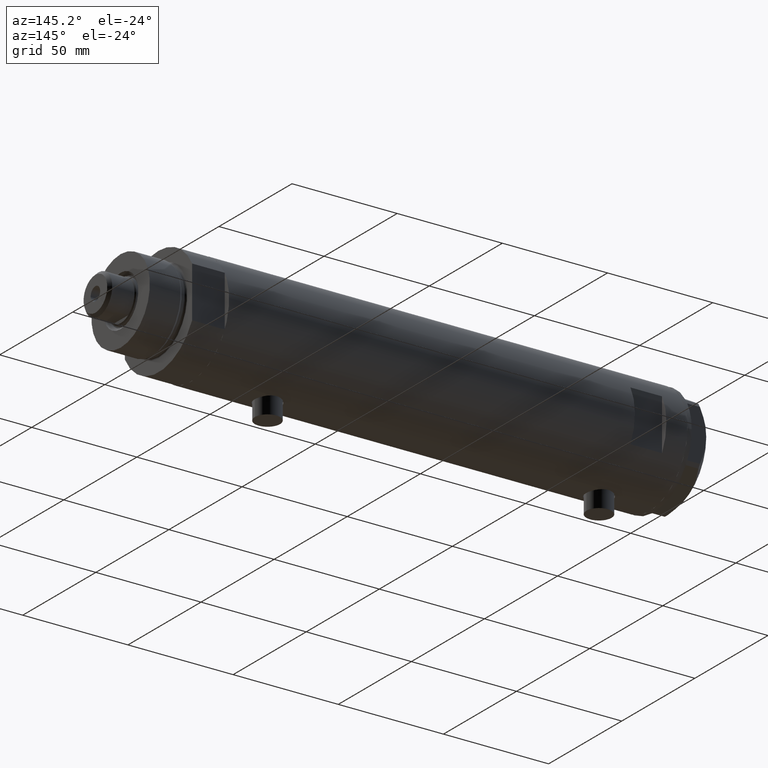
[diagram: clean part render]
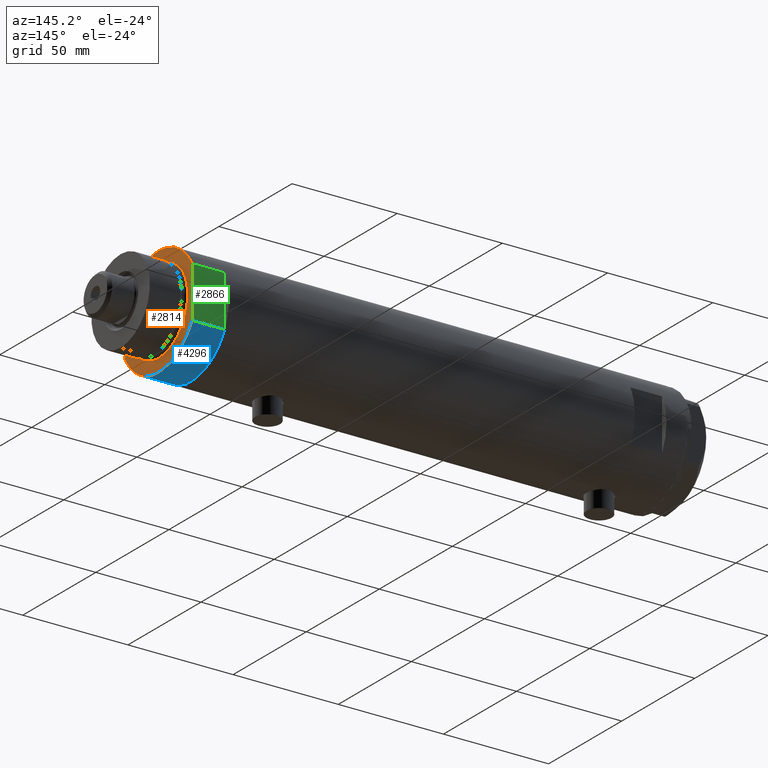
[diagram: same view with three faces highlighted in distinct colors, each labeled with its STEP entity id]
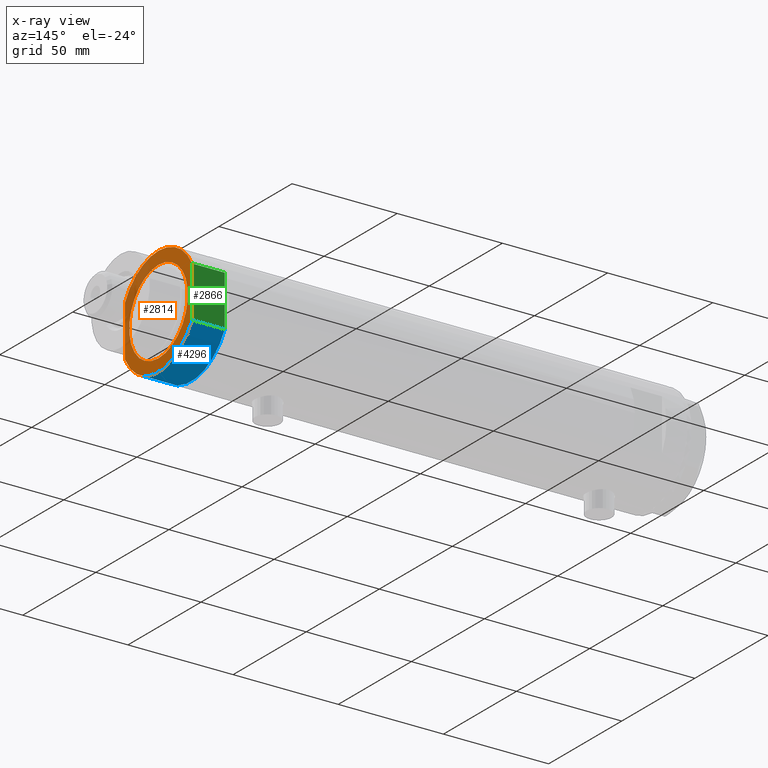
[diagram: x-ray of the same camera — body ghosted, the three highlighted faces saturated]
A machine part, auxiliary view with three faces highlighted in distinct colors.
The next image is the same camera in x-ray (body ghosted, the three faces saturated) — at least one of them is partly hidden behind the body in this view.
Their STEP definitions:

[orange] entity #2814 — the highlighted planar face has unit normal (1, 0, -0).
#115 = DIRECTION ( 'NONE',  ( -1.000000000000000000, -0.000000000000000000, -0.000000000000000000 ) ) ;
#209 = AXIS2_PLACEMENT_3D ( 'NONE', #3566, #2849, #2458 ) ;
#284 = ORIENTED_EDGE ( 'NONE', *, *, #3038, .T. ) ;
#348 = VERTEX_POINT ( 'NONE', #3336 ) ;
#452 = CIRCLE ( 'NONE', #849, 20.00000000000000000 ) ;
#555 = VERTEX_POINT ( 'NONE', #3560 ) ;
#558 = VERTEX_POINT ( 'NONE', #2432 ) ;
#588 = CARTESIAN_POINT ( 'NONE',  ( 0.000000000000000000, 0.000000000000000000, 15.50000000000000000 ) ) ;
#640 = DIRECTION ( 'NONE',  ( -0.000000000000000000, -0.000000000000000000, -1.000000000000000000 ) ) ;
#646 = CARTESIAN_POINT ( 'NONE',  ( -12.12435565298214613, 23.00000000000000355, 15.50000000000000000 ) ) ;
#663 = FACE_OUTER_BOUND ( 'NONE', #3959, .T. ) ;
#724 = EDGE_CURVE ( 'NONE', #1762, #558, #3036, .T. ) ;
#794 = ORIENTED_EDGE ( 'NONE', *, *, #724, .T. ) ;
#849 = AXIS2_PLACEMENT_3D ( 'NONE', #4808, #4440, #1066 ) ;
#980 = ORIENTED_EDGE ( 'NONE', *, *, #3562, .F. ) ;
#985 = VERTEX_POINT ( 'NONE', #1037 ) ;
#1037 = CARTESIAN_POINT ( 'NONE',  ( 12.12435565298214790, 23.00000000000000355, 15.50000000000000000 ) ) ;
#1066 = DIRECTION ( 'NONE',  ( 1.000000000000000000, 0.000000000000000000, 0.000000000000000000 ) ) ;
#1068 = ORIENTED_EDGE ( 'NONE', *, *, #3378, .F. ) ;
#1173 = AXIS2_PLACEMENT_3D ( 'NONE', #3702, #4395, #4029 ) ;
#1179 = VECTOR ( 'NONE', #2583, 1000.000000000000000 ) ;
#1215 = DIRECTION ( 'NONE',  ( 0.000000000000000000, 0.000000000000000000, 1.000000000000000000 ) ) ;
#1419 = AXIS2_PLACEMENT_3D ( 'NONE', #588, #640, #2134 ) ;
#1646 = CARTESIAN_POINT ( 'NONE',  ( 0.000000000000000000, 0.000000000000000000, 15.50000000000000000 ) ) ;
#1667 = LINE ( 'NONE', #4034, #1179 ) ;
#1762 = VERTEX_POINT ( 'NONE', #646 ) ;
#1791 = AXIS2_PLACEMENT_3D ( 'NONE', #1646, #1215, #3839 ) ;
#1796 = CIRCLE ( 'NONE', #209, 26.00000000000000355 ) ;
#1954 = CIRCLE ( 'NONE', #2105, 26.00000000000000355 ) ;
#2029 = LINE ( 'NONE', #3432, #3853 ) ;
#2092 = VERTEX_POINT ( 'NONE', #3638 ) ;
#2105 = AXIS2_PLACEMENT_3D ( 'NONE', #2875, #2502, #4726 ) ;
#2134 = DIRECTION ( 'NONE',  ( 1.000000000000000000, 0.000000000000000000, 0.000000000000000000 ) ) ;
#2159 = PLANE ( 'NONE',  #1173 ) ;
#2432 = CARTESIAN_POINT ( 'NONE',  ( -26.00000000000000355, 0.000000000000000000, 15.50000000000000000 ) ) ;
#2458 = DIRECTION ( 'NONE',  ( 1.000000000000000000, 0.000000000000000000, 0.000000000000000000 ) ) ;
#2502 = DIRECTION ( 'NONE',  ( 0.000000000000000000, 0.000000000000000000, 1.000000000000000000 ) ) ;
#2583 = DIRECTION ( 'NONE',  ( 1.000000000000000000, 0.000000000000000000, 0.000000000000000000 ) ) ;
#2724 = EDGE_CURVE ( 'NONE', #4094, #555, #452, .T. ) ;
#2814 = ADVANCED_FACE ( 'NONE', ( #4053, #663 ), #2159, .T. ) ;
#2849 = DIRECTION ( 'NONE',  ( 0.000000000000000000, 0.000000000000000000, 1.000000000000000000 ) ) ;
#2875 = CARTESIAN_POINT ( 'NONE',  ( 0.000000000000000000, 0.000000000000000000, 15.50000000000000000 ) ) ;
#3036 = CIRCLE ( 'NONE', #1791, 26.00000000000000355 ) ;
#3038 = EDGE_CURVE ( 'NONE', #348, #985, #1954, .T. ) ;
#3067 = CARTESIAN_POINT ( 'NONE',  ( 20.00000000000000000, 0.000000000000000000, 15.50000000000000000 ) ) ;
#3336 = CARTESIAN_POINT ( 'NONE',  ( 12.12435565298215323, -22.99999999999999645, 15.50000000000000000 ) ) ;
#3378 = EDGE_CURVE ( 'NONE', #1762, #985, #1667, .T. ) ;
#3430 = EDGE_CURVE ( 'NONE', #558, #2092, #1796, .T. ) ;
#3432 = CARTESIAN_POINT ( 'NONE',  ( -12.12435565298215145, -22.99999999999999645, 15.50000000000000000 ) ) ;
#3554 = ORIENTED_EDGE ( 'NONE', *, *, #4729, .T. ) ;
#3560 = CARTESIAN_POINT ( 'NONE',  ( -20.00000000000000000, 2.449293598294706513E-15, 15.50000000000000000 ) ) ;
#3562 = EDGE_CURVE ( 'NONE', #348, #2092, #2029, .T. ) ;
#3566 = CARTESIAN_POINT ( 'NONE',  ( 0.000000000000000000, 0.000000000000000000, 15.50000000000000000 ) ) ;
#3615 = CIRCLE ( 'NONE', #1419, 20.00000000000000000 ) ;
#3638 = CARTESIAN_POINT ( 'NONE',  ( -12.12435565298215323, -22.99999999999999645, 15.50000000000000000 ) ) ;
#3702 = CARTESIAN_POINT ( 'NONE',  ( 0.000000000000000000, 0.000000000000000000, 15.50000000000000000 ) ) ;
#3712 = EDGE_LOOP ( 'NONE', ( #4587, #3554 ) ) ;
#3839 = DIRECTION ( 'NONE',  ( 1.000000000000000000, 0.000000000000000000, 0.000000000000000000 ) ) ;
#3853 = VECTOR ( 'NONE', #115, 1000.000000000000000 ) ;
#3959 = EDGE_LOOP ( 'NONE', ( #980, #284, #1068, #794, #4479 ) ) ;
#4029 = DIRECTION ( 'NONE',  ( 1.000000000000000000, 0.000000000000000000, -0.000000000000000000 ) ) ;
#4034 = CARTESIAN_POINT ( 'NONE',  ( -12.12435565298215145, 23.00000000000000355, 15.50000000000000000 ) ) ;
#4053 = FACE_BOUND ( 'NONE', #3712, .T. ) ;
#4094 = VERTEX_POINT ( 'NONE', #3067 ) ;
#4395 = DIRECTION ( 'NONE',  ( 0.000000000000000000, 0.000000000000000000, 1.000000000000000000 ) ) ;
#4440 = DIRECTION ( 'NONE',  ( -0.000000000000000000, -0.000000000000000000, -1.000000000000000000 ) ) ;
#4479 = ORIENTED_EDGE ( 'NONE', *, *, #3430, .T. ) ;
#4587 = ORIENTED_EDGE ( 'NONE', *, *, #2724, .T. ) ;
#4726 = DIRECTION ( 'NONE',  ( 1.000000000000000000, 0.000000000000000000, 0.000000000000000000 ) ) ;
#4729 = EDGE_CURVE ( 'NONE', #555, #4094, #3615, .T. ) ;
#4808 = CARTESIAN_POINT ( 'NONE',  ( 0.000000000000000000, 0.000000000000000000, 15.50000000000000000 ) ) ;

[blue] entity #4296 — the highlighted cylindrical surface (partial cylindrical patch) has radius 26 mm, axis along (-1, -0, 0).
#16 = CARTESIAN_POINT ( 'NONE',  ( 12.12435565298215323, -22.99999999999999645, 0.000000000000000000 ) ) ;
#61 = DIRECTION ( 'NONE',  ( -0.000000000000000000, -0.000000000000000000, -1.000000000000000000 ) ) ;
#267 = DIRECTION ( 'NONE',  ( -0.000000000000000000, -0.000000000000000000, 1.000000000000000000 ) ) ;
#348 = VERTEX_POINT ( 'NONE', #3336 ) ;
#427 = FACE_OUTER_BOUND ( 'NONE', #4862, .T. ) ;
#429 = DIRECTION ( 'NONE',  ( -0.000000000000000000, -0.000000000000000000, 1.000000000000000000 ) ) ;
#462 = CARTESIAN_POINT ( 'NONE',  ( 0.000000000000000000, 0.000000000000000000, 0.000000000000000000 ) ) ;
#694 = AXIS2_PLACEMENT_3D ( 'NONE', #462, #809, #1651 ) ;
#782 = LINE ( 'NONE', #3404, #2631 ) ;
#809 = DIRECTION ( 'NONE',  ( 0.000000000000000000, 0.000000000000000000, 1.000000000000000000 ) ) ;
#821 = VERTEX_POINT ( 'NONE', #2374 ) ;
#857 = VERTEX_POINT ( 'NONE', #16 ) ;
#985 = VERTEX_POINT ( 'NONE', #1037 ) ;
#1021 = AXIS2_PLACEMENT_3D ( 'NONE', #4550, #61, #3381 ) ;
#1037 = CARTESIAN_POINT ( 'NONE',  ( 12.12435565298214790, 23.00000000000000355, 15.50000000000000000 ) ) ;
#1321 = ORIENTED_EDGE ( 'NONE', *, *, #2056, .T. ) ;
#1483 = EDGE_CURVE ( 'NONE', #857, #348, #782, .T. ) ;
#1550 = CYLINDRICAL_SURFACE ( 'NONE', #1021, 26.00000000000000355 ) ;
#1552 = ORIENTED_EDGE ( 'NONE', *, *, #1483, .F. ) ;
#1649 = CIRCLE ( 'NONE', #694, 26.00000000000000355 ) ;
#1651 = DIRECTION ( 'NONE',  ( 1.000000000000000000, 0.000000000000000000, 0.000000000000000000 ) ) ;
#1692 = LINE ( 'NONE', #4793, #3429 ) ;
#1954 = CIRCLE ( 'NONE', #2105, 26.00000000000000355 ) ;
#2056 = EDGE_CURVE ( 'NONE', #821, #985, #1692, .T. ) ;
#2105 = AXIS2_PLACEMENT_3D ( 'NONE', #2875, #2502, #4726 ) ;
#2374 = CARTESIAN_POINT ( 'NONE',  ( 12.12435565298214080, 23.00000000000000355, 0.000000000000000000 ) ) ;
#2502 = DIRECTION ( 'NONE',  ( 0.000000000000000000, 0.000000000000000000, 1.000000000000000000 ) ) ;
#2631 = VECTOR ( 'NONE', #429, 1000.000000000000000 ) ;
#2661 = ORIENTED_EDGE ( 'NONE', *, *, #3038, .F. ) ;
#2875 = CARTESIAN_POINT ( 'NONE',  ( 0.000000000000000000, 0.000000000000000000, 15.50000000000000000 ) ) ;
#3038 = EDGE_CURVE ( 'NONE', #348, #985, #1954, .T. ) ;
#3336 = CARTESIAN_POINT ( 'NONE',  ( 12.12435565298215323, -22.99999999999999645, 15.50000000000000000 ) ) ;
#3381 = DIRECTION ( 'NONE',  ( -1.000000000000000000, 0.000000000000000000, 0.000000000000000000 ) ) ;
#3404 = CARTESIAN_POINT ( 'NONE',  ( 12.12435565298215323, -22.99999999999999645, 0.000000000000000000 ) ) ;
#3429 = VECTOR ( 'NONE', #267, 1000.000000000000000 ) ;
#3606 = EDGE_CURVE ( 'NONE', #857, #821, #1649, .T. ) ;
#4296 = ADVANCED_FACE ( 'NONE', ( #427 ), #1550, .T. ) ;
#4550 = CARTESIAN_POINT ( 'NONE',  ( 0.000000000000000000, 0.000000000000000000, 15.50000000000000000 ) ) ;
#4718 = ORIENTED_EDGE ( 'NONE', *, *, #3606, .T. ) ;
#4726 = DIRECTION ( 'NONE',  ( 1.000000000000000000, 0.000000000000000000, 0.000000000000000000 ) ) ;
#4793 = CARTESIAN_POINT ( 'NONE',  ( 12.12435565298215323, 23.00000000000000355, 0.000000000000000000 ) ) ;
#4862 = EDGE_LOOP ( 'NONE', ( #2661, #1552, #4718, #1321 ) ) ;

[green] entity #2866 — the highlighted planar face has unit normal (0, -1, -0).
#267 = DIRECTION ( 'NONE',  ( -0.000000000000000000, -0.000000000000000000, 1.000000000000000000 ) ) ;
#424 = CARTESIAN_POINT ( 'NONE',  ( -12.12435565298215145, 23.00000000000000355, 0.000000000000000000 ) ) ;
#448 = LINE ( 'NONE', #424, #4317 ) ;
#646 = CARTESIAN_POINT ( 'NONE',  ( -12.12435565298214613, 23.00000000000000355, 15.50000000000000000 ) ) ;
#699 = ORIENTED_EDGE ( 'NONE', *, *, #3378, .T. ) ;
#821 = VERTEX_POINT ( 'NONE', #2374 ) ;
#842 = EDGE_CURVE ( 'NONE', #2842, #821, #448, .T. ) ;
#985 = VERTEX_POINT ( 'NONE', #1037 ) ;
#1014 = VECTOR ( 'NONE', #1111, 1000.000000000000000 ) ;
#1037 = CARTESIAN_POINT ( 'NONE',  ( 12.12435565298214790, 23.00000000000000355, 15.50000000000000000 ) ) ;
#1111 = DIRECTION ( 'NONE',  ( -0.000000000000000000, -0.000000000000000000, 1.000000000000000000 ) ) ;
#1179 = VECTOR ( 'NONE', #2583, 1000.000000000000000 ) ;
#1452 = EDGE_CURVE ( 'NONE', #2842, #1762, #2592, .T. ) ;
#1565 = DIRECTION ( 'NONE',  ( 0.000000000000000000, -0.000000000000000000, -1.000000000000000000 ) ) ;
#1575 = EDGE_LOOP ( 'NONE', ( #699, #3802, #3249, #4394 ) ) ;
#1667 = LINE ( 'NONE', #4034, #1179 ) ;
#1692 = LINE ( 'NONE', #4793, #3429 ) ;
#1762 = VERTEX_POINT ( 'NONE', #646 ) ;
#1926 = PLANE ( 'NONE',  #3189 ) ;
#2056 = EDGE_CURVE ( 'NONE', #821, #985, #1692, .T. ) ;
#2374 = CARTESIAN_POINT ( 'NONE',  ( 12.12435565298214080, 23.00000000000000355, 0.000000000000000000 ) ) ;
#2583 = DIRECTION ( 'NONE',  ( 1.000000000000000000, 0.000000000000000000, 0.000000000000000000 ) ) ;
#2592 = LINE ( 'NONE', #3058, #1014 ) ;
#2643 = FACE_OUTER_BOUND ( 'NONE', #1575, .T. ) ;
#2686 = DIRECTION ( 'NONE',  ( 0.000000000000000000, -1.000000000000000000, 0.000000000000000000 ) ) ;
#2712 = CARTESIAN_POINT ( 'NONE',  ( -12.12435565298215145, 23.00000000000000355, 0.000000000000000000 ) ) ;
#2842 = VERTEX_POINT ( 'NONE', #3777 ) ;
#2866 = ADVANCED_FACE ( 'NONE', ( #2643 ), #1926, .F. ) ;
#3058 = CARTESIAN_POINT ( 'NONE',  ( -12.12435565298215145, 23.00000000000000355, 0.000000000000000000 ) ) ;
#3189 = AXIS2_PLACEMENT_3D ( 'NONE', #2712, #2686, #1565 ) ;
#3249 = ORIENTED_EDGE ( 'NONE', *, *, #842, .F. ) ;
#3378 = EDGE_CURVE ( 'NONE', #1762, #985, #1667, .T. ) ;
#3429 = VECTOR ( 'NONE', #267, 1000.000000000000000 ) ;
#3777 = CARTESIAN_POINT ( 'NONE',  ( -12.12435565298215145, 23.00000000000000355, 0.000000000000000000 ) ) ;
#3802 = ORIENTED_EDGE ( 'NONE', *, *, #2056, .F. ) ;
#3809 = DIRECTION ( 'NONE',  ( 1.000000000000000000, 0.000000000000000000, 0.000000000000000000 ) ) ;
#4034 = CARTESIAN_POINT ( 'NONE',  ( -12.12435565298215145, 23.00000000000000355, 15.50000000000000000 ) ) ;
#4317 = VECTOR ( 'NONE', #3809, 1000.000000000000000 ) ;
#4394 = ORIENTED_EDGE ( 'NONE', *, *, #1452, .T. ) ;
#4793 = CARTESIAN_POINT ( 'NONE',  ( 12.12435565298215323, 23.00000000000000355, 0.000000000000000000 ) ) ;